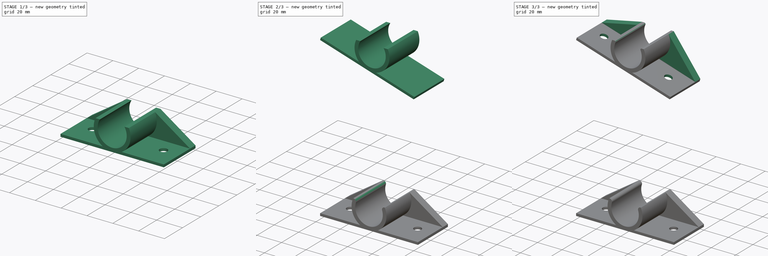
[diagram: build sequence overview — one tinted view per stage of 3, left to right]
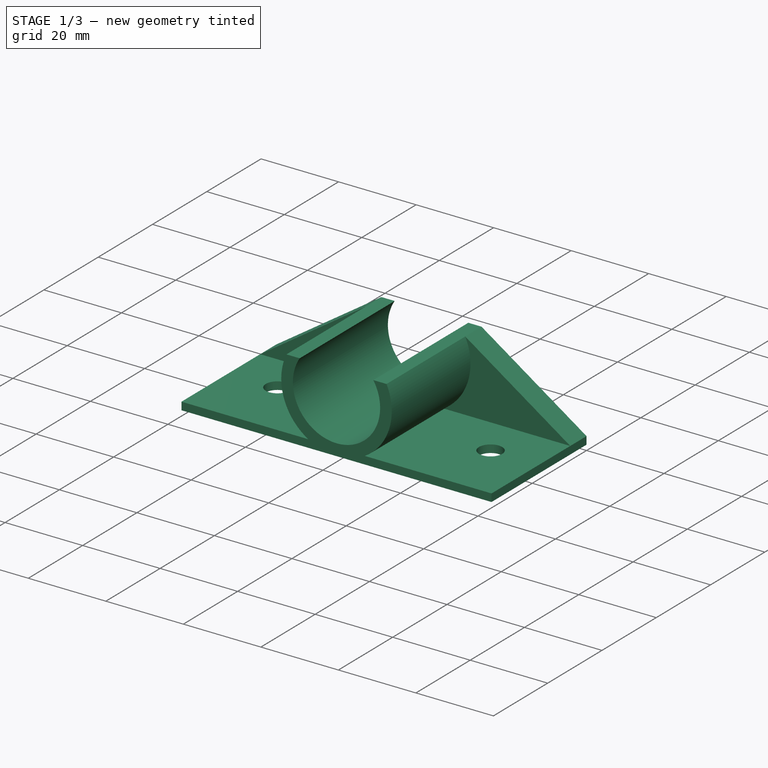
[diagram: stage 1 of 3 — iso view after this stage's code; geometry added in this stage tinted green]
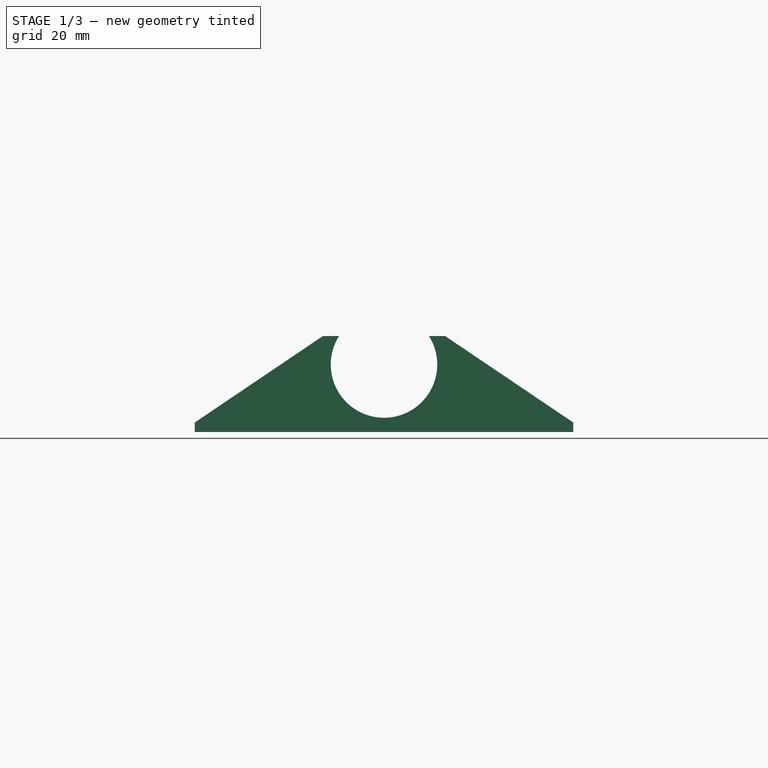
[diagram: stage 1 of 3 — front view after this stage's code; geometry added in this stage tinted green]
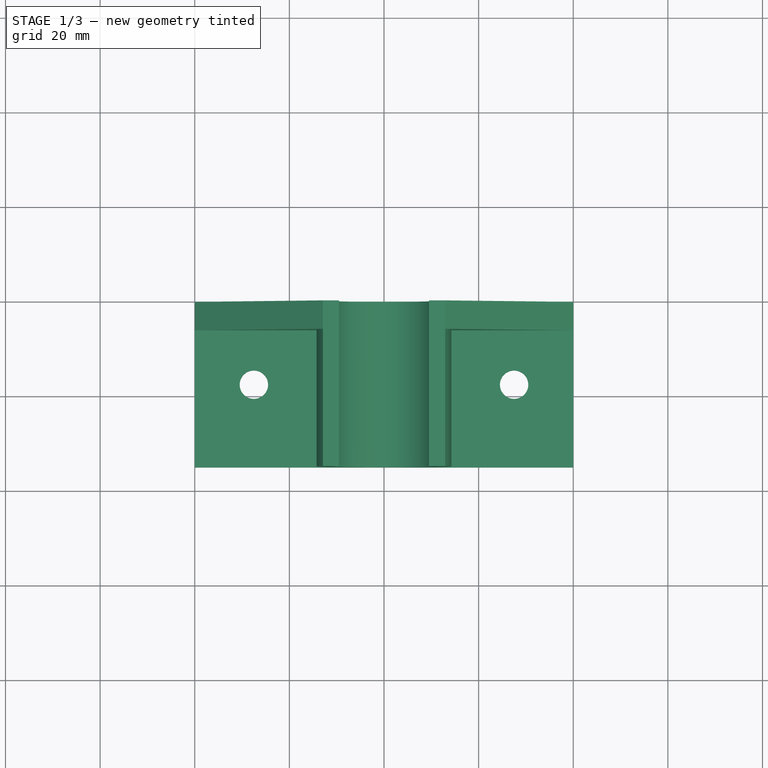
[diagram: stage 1 of 3 — top view after this stage's code; geometry added in this stage tinted green]
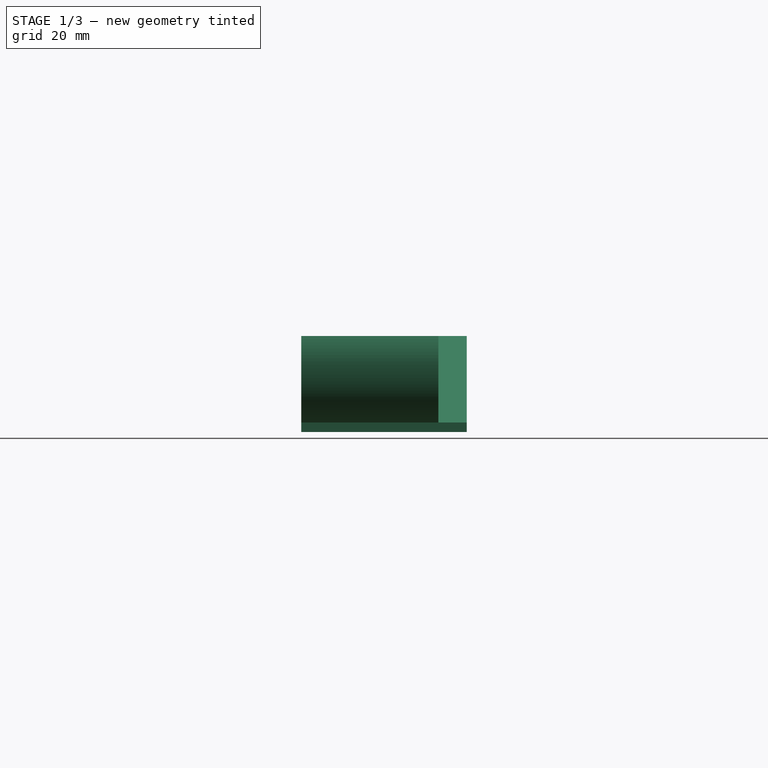
[diagram: stage 1 of 3 — right view after this stage's code; geometry added in this stage tinted green]
FCSTD DOCUMENT  (FreeCAD 1.0R39109 (Git))
Label: hangerRodHolder
License: All rights reserved
LicenseURL: https://en.wikipedia.org/wiki/All_rights_reserved
objects: Sketcher::SketchObject×4, PartDesign::Pad×4, Spreadsheet::Sheet×2, PartDesign::Fillet×2, PartDesign::Hole×2, PartDesign::Body×2
note: 34 computed .brp shape members not serialized (recipe doc carries the construction recipe); baked Part::Feature solids carry a one-line shape summary decoded from their .brp

FEATURE [PartDesign::Body] Body  label="tilted"
  AllowCompound = false
  Group = -> [Sketch,Pad,Pad001,Fillet,Sketch001,Hole]
  Origin = -> Origin
  Placement = pos=(0,0,0) rot=(1,0,0;-1.5708rad)
  Tip = -> Hole
FEATURE [Sketcher::SketchObject] Sketch002
  ArcFitTolerance = 1e-06
  AttachmentSupport = -> [XZ_Plane001]
  FullyConstrained = true
  MakeInternals = false
  MapMode = 5
  Placement = pos=(0,0,0) rot=(1,0,0;1.5708rad)
  expr: .Constraints.rodDia = <<measurement001>>.rodDia + <<measurement001>>.tolerance
  expr: Constraints[14] = <<measurement001>>.baseThickness
  expr: Constraints[2] = .Constraints.rodDia + 6 mm
  expr: Constraints[3] = <<measurement001>>.baseLength
  sketch-geometry (12):
    g0: LineSegment StartX=0 StartY=0 StartZ=0 EndX=80 EndY=0 EndZ=0
    g1: ArcOfCircle CenterX=40 CenterY=14.25 CenterZ=0 NormalX=0 NormalY=0 NormalZ=1 AngleXU=0 Radius=11.25 StartAngle=2.57632 EndAngle=6.84845
    g2: ArcOfCircle CenterX=40 CenterY=14.25 CenterZ=0 NormalX=0 NormalY=0 NormalZ=1 AngleXU=0 Radius=14.25 StartAngle=2.70498 EndAngle=4.17618
    g3: LineSegment StartX=0 StartY=0 StartZ=0 EndX=0 EndY=2 EndZ=0
    g4: LineSegment StartX=0 StartY=2 StartZ=0 EndX=32.7199 EndY=2 EndZ=0
    g5: LineSegment StartX=80 StartY=0 StartZ=0 EndX=80 EndY=2 EndZ=0
    g6: LineSegment StartX=80 StartY=2 StartZ=0 EndX=47.2801 EndY=2 EndZ=0
    g7: LineSegment StartX=0 StartY=2 StartZ=0 EndX=27.0868 EndY=20.276 EndZ=0
    g8: LineSegment StartX=52.9132 StartY=20.276 StartZ=0 EndX=80 EndY=2 EndZ=0
    g9: LineSegment StartX=27.0868 StartY=20.276 StartZ=0 EndX=30.5 EndY=20.276 EndZ=0
    g10: LineSegment StartX=49.5 StartY=20.276 StartZ=0 EndX=52.9132 EndY=20.276 EndZ=0
    g11: ArcOfCircle CenterX=40 CenterY=14.25 CenterZ=0 NormalX=0 NormalY=0 NormalZ=1 AngleXU=0 Radius=14.25 StartAngle=5.2486 EndAngle=6.7198
  constraints (34):
    c: Diameter(g1) = 22.5  'rodDia'
    c: Coincident(g2,g1)
    c: Diameter(g2) = 28.5
    c: Distance(g0) = 80
    c: Tangent(g2,g0)
    c: Coincident(g4,g3)
    c: Coincident(g5,g0)
    c: Coincident(g6,g5)
    c: PointOnObject(g6,g11)
    c: Perpendicular(g0,g5)
    c: Perpendicular(g0,g3)
    c: Tangent(g4,g6)
    c: Parallel(g6,g0)
    c: Equal(g6,g4)
    c: Distance(g5) = 2
    c: Coincident(g7,g3)
    c: Coincident(g8,g5)
    c: Coincident(g9,g7)
    c: Coincident(g10,g8)
    c: Coincident(g11,g8)
    c: Coincident(g2,g7)
    c: PointOnObject(g1,g10)
    c: Coincident(g9,g1)
    c: PointOnObject(g10,g1)
    c: Tangent(g10,g9)
    c: Equal(g2,g11)
    c: PointOnObject(g11,g6)
    c: Coincident(g2,g11)
    c: Coincident(g2,g4)
    c: Horizontal(g10)
    c: Distance(g1,g1) = 19
    c: Horizontal(g0)
    c: Coincident(g0,g-1)
    c: Coincident(g3,g0)
FEATURE [PartDesign::Pad] Pad002
  Direction = (0,-1,2e-16)
  Length = 35
  Length2 = 10
  Placement = pos=(0,0,0) rot=(1,0,0;1.5708rad)
  Profile = -> Sketch002 [Edge2,Edge11,Edge12,Edge10,Edge8,Edge6,Edge5,Edge7,Edge3,Vertex1,Edge4]
  ReferenceAxis = -> Sketch002 [N_Axis]
  Refine = true
  Suppressed = false
  Type = 0
FEATURE [PartDesign::Pad] Pad003
  BaseFeature = -> Pad002
  Direction = (0,-1,2e-16)
  Length = 6
  Length2 = 10
  Placement = pos=(0,0,0) rot=(1,0,0;1.5708rad)
  Profile = -> Sketch002 [Edge8,Edge9,Edge7,Edge3,Edge1,Edge2]
  ReferenceAxis = -> Sketch002 [N_Axis]
  Refine = true
  Suppressed = false
  Type = 0
  expr: Length = <<measurement001>>.wallThickness * 2
FEATURE [Sketcher::SketchObject] Sketch003
  ArcFitTolerance = 1e-06
  AttachmentSupport = -> [Pad003]
  ExternalGeometry = -> [Pad003]
  FullyConstrained = true
  MakeInternals = false
  MapMode = 5
  Placement = pos=(0,0,0) rot=(1,0,0;3.14159rad)
  expr: Constraints[5] = <<measurement001>>.holeDia + <<measurement001>>.tolerance
  sketch-geometry (7):
    g0: Circle CenterX=67.5 CenterY=17.5 CenterZ=0 NormalX=0 NormalY=0 NormalZ=1 AngleXU=0 Radius=5.25
    g1: Circle CenterX=12.5 CenterY=17.5 CenterZ=0 NormalX=0 NormalY=0 NormalZ=1 AngleXU=0 Radius=5.25
    g2: LineSegment [constr] StartX=67.5 StartY=17.5 StartZ=0 EndX=67.5 EndY=0 EndZ=0
    g3: LineSegment [constr] StartX=67.5 StartY=17.5 StartZ=0 EndX=67.5 EndY=35 EndZ=0
    g4: LineSegment [constr] StartX=12.5 StartY=17.5 StartZ=0 EndX=67.5 EndY=17.5 EndZ=0
    g5: LineSegment [constr] StartX=12.5 StartY=17.5 StartZ=0 EndX=0 EndY=17.5 EndZ=0
    g6: LineSegment [constr] StartX=80 StartY=17.5 StartZ=0 EndX=67.5 EndY=17.5 EndZ=0
  constraints (19):
    c: Equal(g0,g1)
    c: Coincident(g2,g0)
    c: PointOnObject(g2,g-1)
    c: Vertical(g2)
    c: DistanceX(g1,g0) = 55
    c: Diameter(g0) = 10.5
    c: Coincident(g3,g0)
    c: Vertical(g3)
    c: Equal(g3,g2)
    c: Coincident(g4,g1)
    c: Coincident(g4,g0)
    c: Horizontal(g4)
    c: PointOnObject(g3,g-3)
    c: Coincident(g5,g1)
    c: PointOnObject(g5,g-2)
    c: Horizontal(g5)
    c: Symmetric(g-4,g-4,g6)
    c: Coincident(g6,g0)
    c: Equal(g6,g5)
FEATURE [PartDesign::Hole] Hole001
  BaseFeature = -> Pad003
  CustomThreadClearance = 0
  Depth = 2
  DepthType = 0
  Diameter = 6
  DrillForDepth = false
  DrillPoint = 1
  DrillPointAngle = 118
  HoleCutCountersinkAngle = 90
  HoleCutCustomValues = false
  HoleCutDepth = 0
  HoleCutDiameter = 6.1
  HoleCutType = 0
  ModelThread = false
  Placement = pos=(0,0,0) rot=(1,0,0;1.5708rad)
  Profile = -> Sketch003 [Edge1,Edge2]
  Refine = true
  Suppressed = false
  Tapered = false
  TaperedAngle = 90
  ThreadClass = 0
  ThreadDepth = 2
  ThreadDepthType = 0
  ThreadDirection = 0
  ThreadFit = 0
  ThreadSize = 0
  ThreadType = 0
  Threaded = false
  UseCustomThreadClearance = false
  expr: Depth = <<measurement001>>.baseThickness
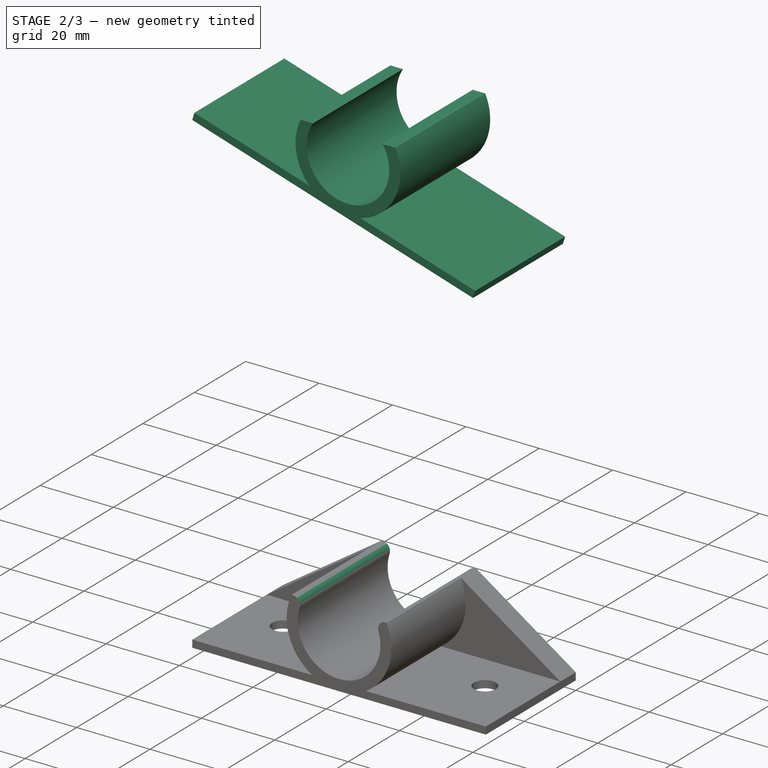
[diagram: stage 2 of 3 — iso view after this stage's code; geometry added in this stage tinted green]
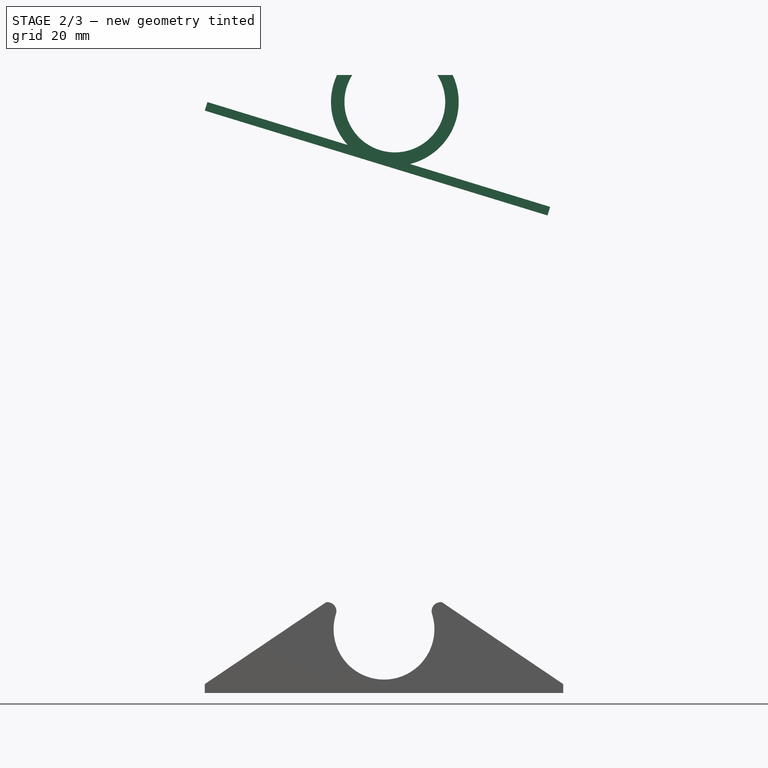
[diagram: stage 2 of 3 — front view after this stage's code; geometry added in this stage tinted green]
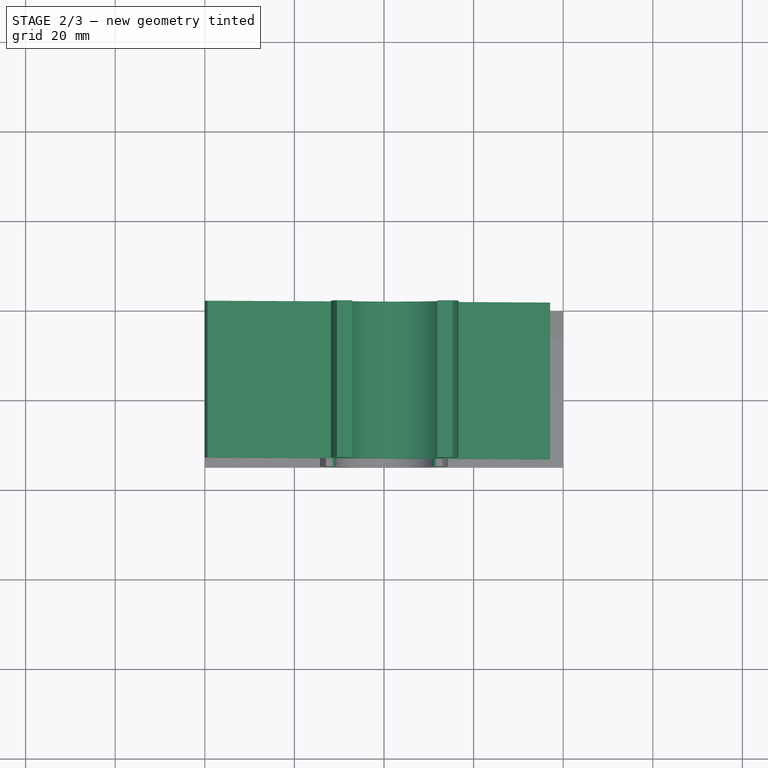
[diagram: stage 2 of 3 — top view after this stage's code; geometry added in this stage tinted green]
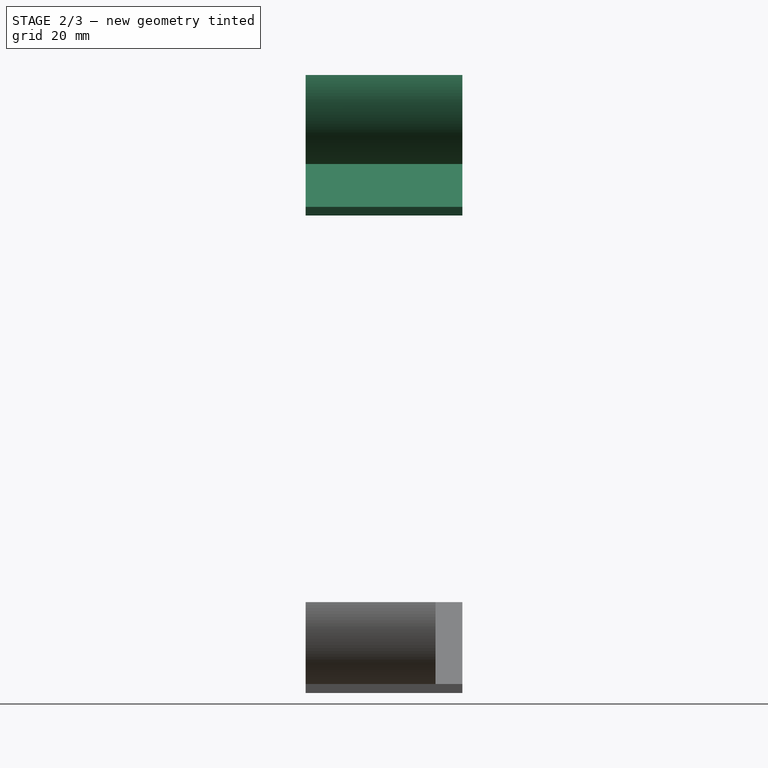
[diagram: stage 2 of 3 — right view after this stage's code; geometry added in this stage tinted green]
FEATURE [Sketcher::SketchObject] Sketch
  ArcFitTolerance = 1e-06
  AttachmentSupport = -> [XZ_Plane]
  FullyConstrained = true
  MakeInternals = false
  MapMode = 5
  Placement = pos=(0,0,0) rot=(1,0,0;1.5708rad)
  expr: .Constraints.rodDia = <<measurement>>.rodDia + <<measurement>>.tolerance
  expr: Constraints[13] = .Constraints.rodDia + 6 mm
  expr: Constraints[14] = <<measurement>>.baseLength
  expr: Constraints[26] = <<measurement>>.baseThickness
  sketch-geometry (15):
    g0: LineSegment [constr] StartX=0 StartY=0 StartZ=0 EndX=425 EndY=0 EndZ=0
    g1: LineSegment [constr] StartX=0 StartY=0 StartZ=0 EndX=0 EndY=130 EndZ=0
    g2: LineSegment [constr] StartX=0 StartY=130 StartZ=0 EndX=425 EndY=0 EndZ=0
    g3: LineSegment StartX=0 StartY=130 StartZ=0 EndX=76.5011 EndY=106.6 EndZ=0
    g4: ArcOfCircle CenterX=42.4188 CenterY=131.927 CenterZ=0 NormalX=0 NormalY=0 NormalZ=1 AngleXU=0 Radius=11.25 StartAngle=2.57632 EndAngle=6.84845
    g5: ArcOfCircle CenterX=42.4188 CenterY=131.927 CenterZ=0 NormalX=0 NormalY=0 NormalZ=1 AngleXU=0 Radius=14.25 StartAngle=2.70498 EndAngle=3.87933
    g6: LineSegment StartX=0 StartY=130 StartZ=0 EndX=0.585009 EndY=131.913 EndZ=0
    g7: LineSegment StartX=0.585009 StartY=131.913 StartZ=0 EndX=31.8739 EndY=122.342 EndZ=0
    g8: LineSegment StartX=76.5011 StartY=106.6 StartZ=0 EndX=77.0861 EndY=108.512 EndZ=0
    g9: LineSegment StartX=77.0861 StartY=108.512 StartZ=0 EndX=45.7973 EndY=118.083 EndZ=0
    g10: LineSegment StartX=0.585009 StartY=131.913 StartZ=0 EndX=29.5056 EndY=137.953 EndZ=0
    g11: LineSegment StartX=55.3319 StartY=137.953 StartZ=0 EndX=77.0861 EndY=108.512 EndZ=0
    g12: LineSegment StartX=29.5056 StartY=137.953 StartZ=0 EndX=32.9188 EndY=137.953 EndZ=0
    g13: LineSegment StartX=51.9188 StartY=137.953 StartZ=0 EndX=55.3319 EndY=137.953 EndZ=0
    g14: ArcOfCircle CenterX=42.4188 CenterY=131.927 CenterZ=0 NormalX=0 NormalY=0 NormalZ=1 AngleXU=0 Radius=14.25 StartAngle=4.95176 EndAngle=6.7198
  constraints (43):
    c: Coincident(g0,g-1)
    c: PointOnObject(g0,g-1)
    c: Distance(g1) = 130
    c: Coincident(g1,g0)
    c: PointOnObject(g1,g-2)
    c: Distance(g0) = 425
    c: Distance(g1,g0) = 444.438
    c: Coincident(g2,g1)
    c: Coincident(g2,g0)
    c: Coincident(g3,g1)
    c: PointOnObject(g3,g2)
    c: Diameter(g4) = 22.5  'rodDia'
    c: Coincident(g5,g4)
    c: Diameter(g5) = 28.5
    c: Distance(g3) = 80
    c: Tangent(g5,g3)
    c: Coincident(g6,g1)
    c: Coincident(g7,g6)
    c: Coincident(g8,g3)
    c: Coincident(g9,g8)
    c: PointOnObject(g9,g14)
    c: Perpendicular(g3,g8)
    c: Perpendicular(g3,g6)
    c: Tangent(g7,g9)
    c: Parallel(g9,g3)
    c: Equal(g9,g7)
    c: Distance(g8) = 2
    c: Coincident(g10,g6)
    c: Coincident(g11,g8)
    c: Coincident(g12,g10)
    c: Coincident(g13,g11)
    c: Coincident(g14,g11)
    c: Coincident(g5,g10)
    c: PointOnObject(g4,g13)
    c: Coincident(g12,g4)
    c: PointOnObject(g13,g4)
    c: Tangent(g13,g12)
    c: Equal(g5,g14)
    c: PointOnObject(g14,g9)
    c: Coincident(g5,g14)
    c: Coincident(g5,g7)
    c: Horizontal(g13)
    c: Distance(g4,g4) = 19
FEATURE [PartDesign::Pad] Pad
  Direction = (0,-1,2e-16)
  Length = 35
  Length2 = 10
  Placement = pos=(0,0,0) rot=(1,0,0;1.5708rad)
  Profile = -> Sketch [Edge5,Edge2,Edge3,Edge1,Edge11,Edge9,Edge8,Edge10,Edge6,Vertex5,Edge7]
  ReferenceAxis = -> Sketch [N_Axis]
  Refine = true
  Suppressed = false
  Type = 0
FEATURE [Spreadsheet::Sheet] Spreadsheet001  label="measurement001"
  cells = A1='tolerance; B1(tolerance)==0.5 mm; A2='rodDia; B2(rodDia)==22 mm; A3='wallThickness; B3(wallThickness)==3 mm; A4='baseThickness; B4(baseThickness)==2 mm; A5='holeDia; B5(holeDia)==10 mm; A6='vSlotSize; B6(vSlotSize)==35 mm; A7='baseLength; B7(baseLength)==80 mm
FEATURE [PartDesign::Fillet] Fillet001
  Base = -> Hole001 [Edge19,Edge38]
  BaseFeature = -> Hole001
  Placement = pos=(0,0,0) rot=(1,0,0;1.5708rad)
  Radius = 2
  Refine = true
  SupportTransform = false
  Suppressed = false
  UseAllEdges = false
FEATURE [PartDesign::Body] Body001  label="ortho"
  AllowCompound = false
  Group = -> [Sketch002,Pad002,Pad003,Sketch003,Hole001,Fillet001]
  Origin = -> Origin001
  Placement = pos=(0,0,0) rot=(1,0,0;-1.5708rad)
  Tip = -> Fillet001
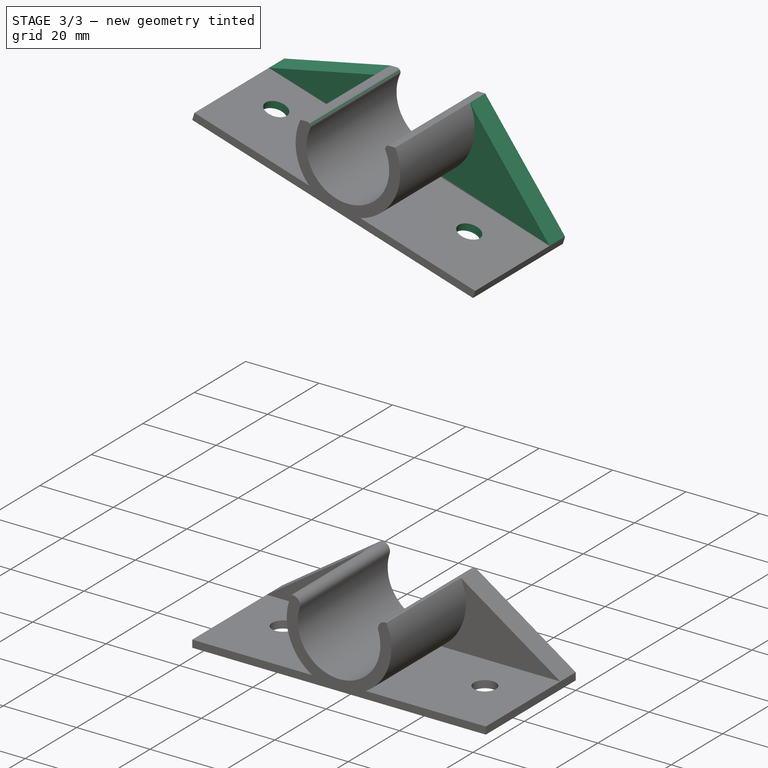
[diagram: stage 3 of 3 — iso view after this stage's code; geometry added in this stage tinted green]
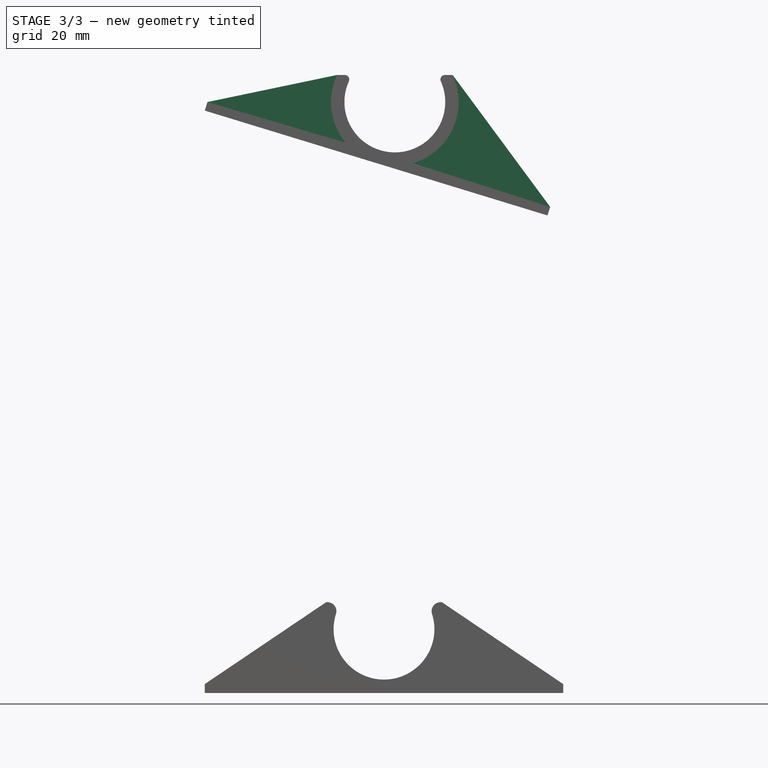
[diagram: stage 3 of 3 — front view after this stage's code; geometry added in this stage tinted green]
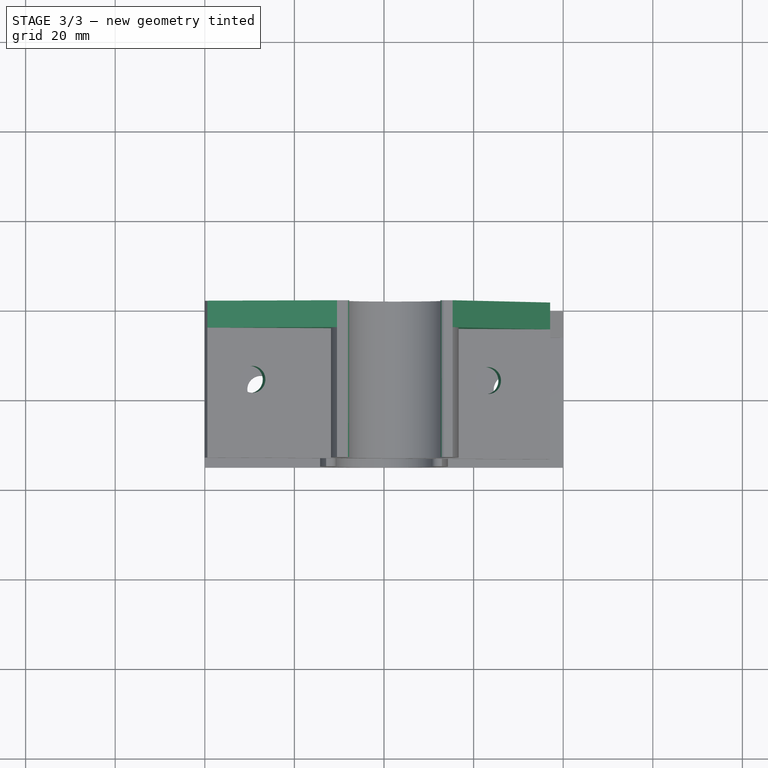
[diagram: stage 3 of 3 — top view after this stage's code; geometry added in this stage tinted green]
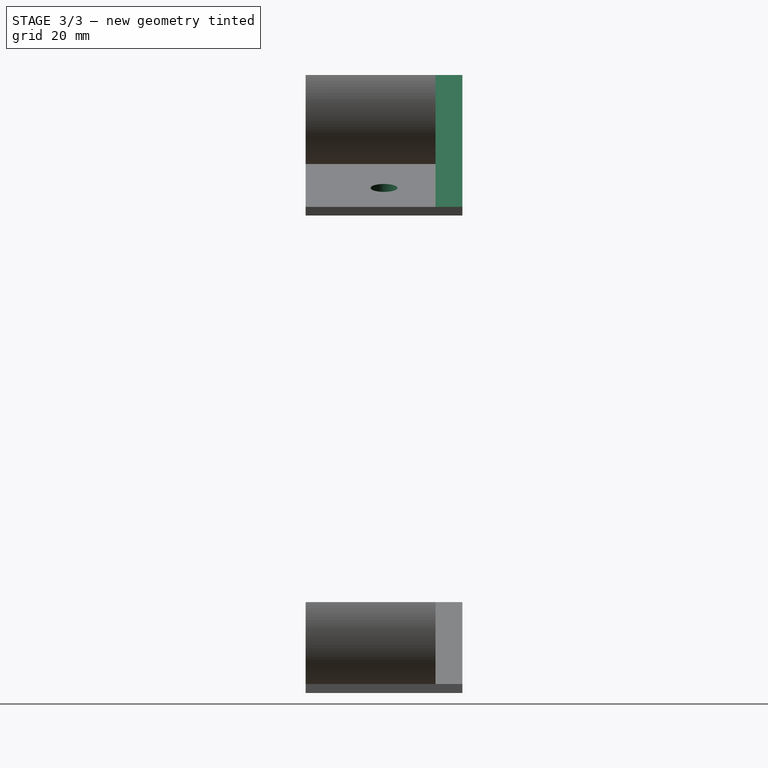
[diagram: stage 3 of 3 — right view after this stage's code; geometry added in this stage tinted green]
FEATURE [PartDesign::Pad] Pad001
  BaseFeature = -> Pad
  Direction = (0,-1,2e-16)
  Length = 6
  Length2 = 10
  Placement = pos=(0,0,0) rot=(1,0,0;1.5708rad)
  Profile = -> Sketch [Edge11,Edge12,Edge10,Edge6,Edge4,Edge5]
  ReferenceAxis = -> Sketch [N_Axis]
  Refine = true
  Suppressed = false
  Type = 0
  expr: Length = <<measurement>>.wallThickness * 2
FEATURE [Spreadsheet::Sheet] Spreadsheet  label="measurement"
  cells = A1='tolerance; B1(tolerance)==0.5 mm; A2='rodDia; B2(rodDia)==22 mm; A3='wallThickness; B3(wallThickness)==3 mm; A4='baseThickness; B4(baseThickness)==2 mm; A5='holeDia; B5(holeDia)==10 mm; A6='vSlotSize; B6(vSlotSize)==35 mm; A7='baseLength; B7(baseLength)==80 mm
FEATURE [PartDesign::Fillet] Fillet
  Base = -> Pad001 [Edge18,Edge33]
  BaseFeature = -> Pad001
  Placement = pos=(0,0,0) rot=(1,0,0;1.5708rad)
  Radius = 1
  Refine = true
  SupportTransform = false
  Suppressed = false
  UseAllEdges = false
FEATURE [Sketcher::SketchObject] Sketch001
  ArcFitTolerance = 1e-06
  AttachmentSupport = -> [Fillet]
  ExternalGeometry = -> [Fillet]
  FullyConstrained = true
  MakeInternals = false
  MapMode = 5
  Placement = pos=(36.3625,5.22e-14,118.877) rot=(0.989006,0,-0.147878;3.14159rad)
  expr: Constraints[12] = <<measurement>>.holeDia + <<measurement>>.tolerance
  sketch-geometry (6):
    g0: Circle CenterX=27.5 CenterY=17.5 CenterZ=0 NormalX=0 NormalY=0 NormalZ=1 AngleXU=0 Radius=5.25
    g1: Circle CenterX=-27.5 CenterY=17.5 CenterZ=0 NormalX=0 NormalY=0 NormalZ=1 AngleXU=0 Radius=5.25
    g2: LineSegment [constr] StartX=-27.5 StartY=17.5 StartZ=0 EndX=0 EndY=17.5 EndZ=0
    g3: LineSegment [constr] StartX=27.5 StartY=17.5 StartZ=0 EndX=0 EndY=17.5 EndZ=0
    g4: LineSegment [constr] StartX=27.5 StartY=17.5 StartZ=0 EndX=27.5 EndY=0 EndZ=0
    g5: LineSegment [constr] StartX=27.5 StartY=17.5 StartZ=0 EndX=27.5 EndY=35 EndZ=0
  constraints (17):
    c: Equal(g0,g1)
    c: Coincident(g2,g1)
    c: PointOnObject(g2,g-2)
    c: Horizontal(g2)
    c: Coincident(g3,g0)
    c: PointOnObject(g3,g-2)
    c: Coincident(g4,g0)
    c: PointOnObject(g4,g-1)
    c: Vertical(g4)
    c: Equal(g3,g2)
    c: Tangent(g2,g3)
    c: DistanceX(g1,g0) = 55
    c: Diameter(g0) = 10.5
    c: Coincident(g5,g0)
    c: PointOnObject(g5,g-4)
    c: Vertical(g5)
    c: Equal(g5,g4)
FEATURE [PartDesign::Hole] Hole
  BaseFeature = -> Fillet
  CustomThreadClearance = 0
  Depth = 2
  DepthType = 0
  Diameter = 6
  DrillForDepth = false
  DrillPoint = 1
  DrillPointAngle = 118
  HoleCutCountersinkAngle = 90
  HoleCutCustomValues = false
  HoleCutDepth = 0
  HoleCutDiameter = 6.1
  HoleCutType = 0
  ModelThread = false
  Placement = pos=(0,0,0) rot=(1,0,0;1.5708rad)
  Profile = -> Sketch001 [Edge1,Edge2]
  Refine = true
  Suppressed = false
  Tapered = false
  TaperedAngle = 90
  ThreadClass = 0
  ThreadDepth = 2
  ThreadDepthType = 0
  ThreadDirection = 0
  ThreadFit = 0
  ThreadSize = 0
  ThreadType = 0
  Threaded = false
  UseCustomThreadClearance = false
  expr: Depth = <<measurement>>.baseThickness
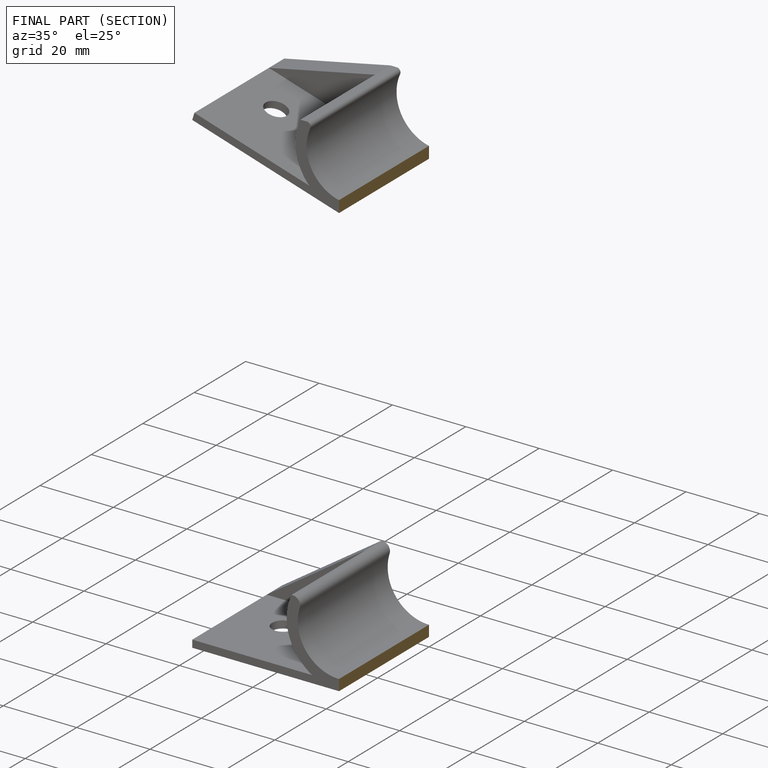
[diagram: finished part — half-section view (interior)]
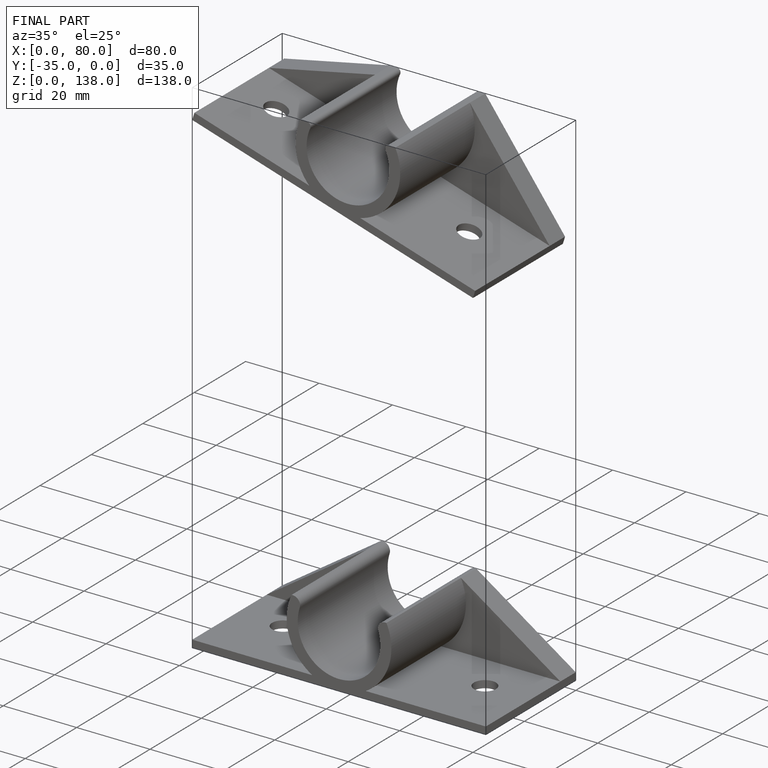
[diagram: finished part — iso view with bounding-box wireframe]
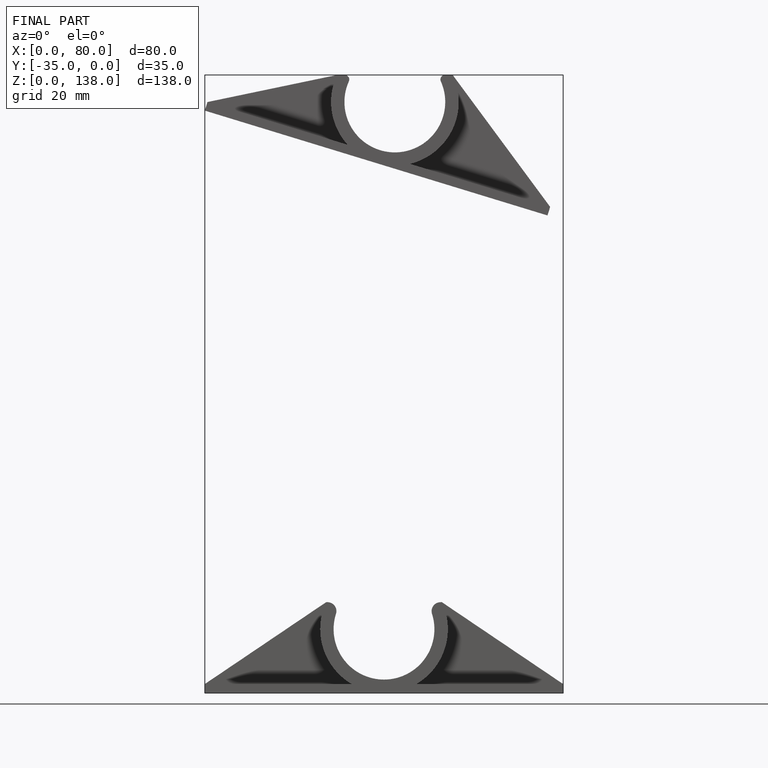
[diagram: finished part — front view with bounding-box wireframe]
